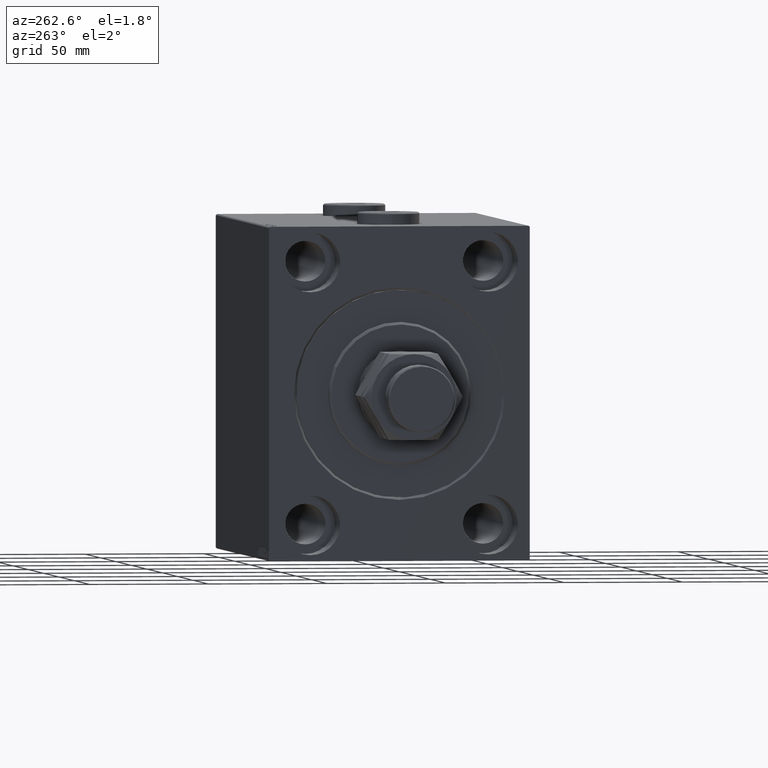
[diagram: clean part render]
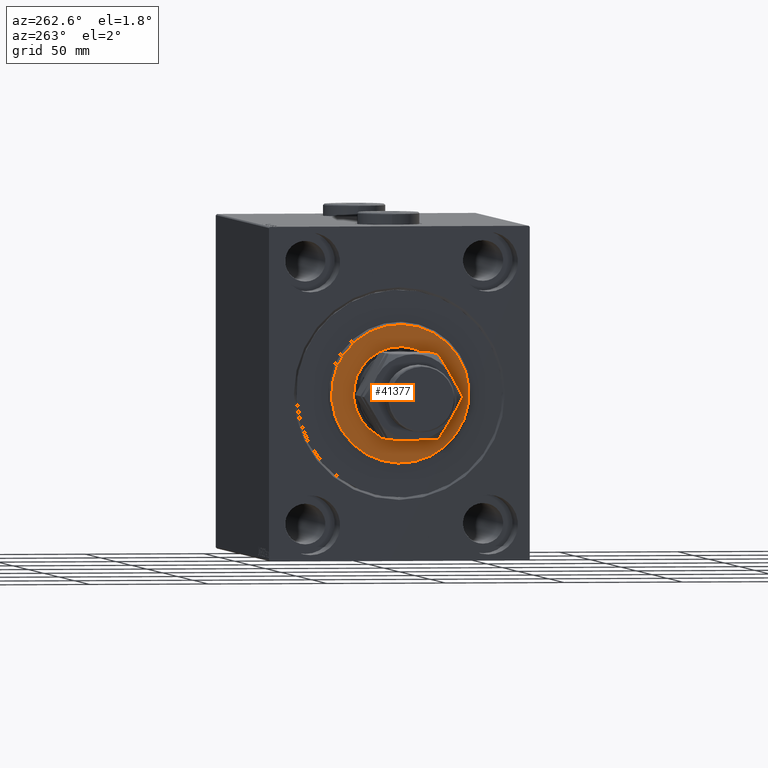
[diagram: same view with one face highlighted and labeled with its STEP entity id]
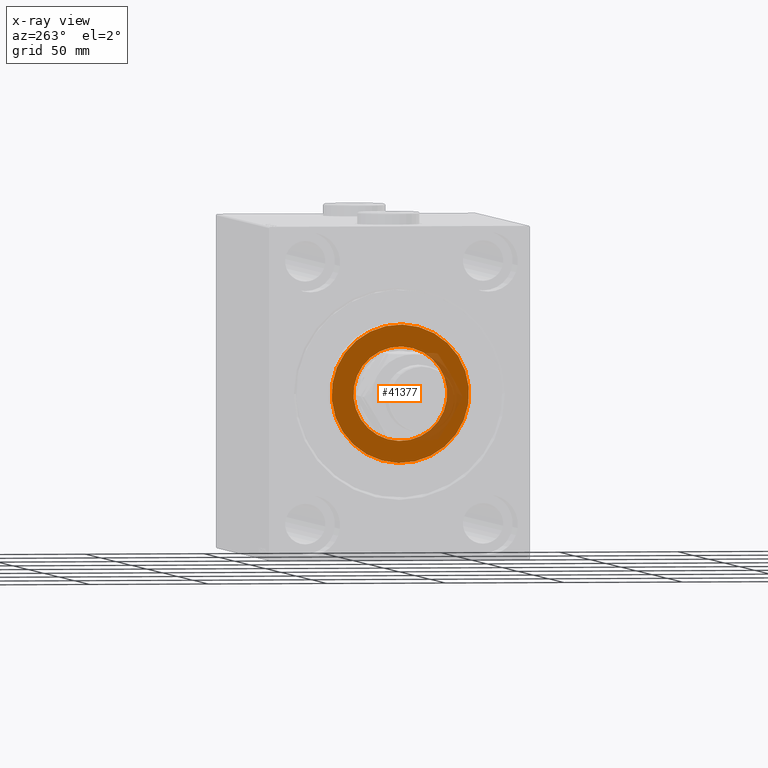
[diagram: x-ray of the same camera — body ghosted, the highlighted face saturated]
A machine part, auxiliary view. The second image highlights one B-rep face of the part: STEP entity #41377.
The next image is the same camera in x-ray: the body ghosted, the highlighted face saturated — about 13% of this face is hidden behind the body in this view.
In plain terms, the highlighted planar face has unit normal (-1, 0, 0).
Its self-contained STEP definition (entity closure, byte-faithful):
#2478 = AXIS2_PLACEMENT_3D ( 'NONE', #5782, #31244, #27421 ) ;
#4184 = AXIS2_PLACEMENT_3D ( 'NONE', #37501, #30604, #16333 ) ;
#5782 = CARTESIAN_POINT ( 'NONE',  ( 3.000000000000000000, 0.000000000000000000, 0.000000000000000000 ) ) ;
#8401 = ORIENTED_EDGE ( 'NONE', *, *, #41915, .T. ) ;
#10887 = AXIS2_PLACEMENT_3D ( 'NONE', #19727, #19026, #16155 ) ;
#11198 = EDGE_LOOP ( 'NONE', ( #29386, #8401 ) ) ;
#11242 = VERTEX_POINT ( 'NONE', #26295 ) ;
#13956 = DIRECTION ( 'NONE',  ( 0.000000000000000000, 0.000000000000000000, -1.000000000000000000 ) ) ;
#15405 = DIRECTION ( 'NONE',  ( 1.000000000000000000, -0.000000000000000000, 0.000000000000000000 ) ) ;
#16155 = DIRECTION ( 'NONE',  ( 0.000000000000000000, 0.000000000000000000, -1.000000000000000000 ) ) ;
#16333 = DIRECTION ( 'NONE',  ( 0.000000000000000000, 0.000000000000000000, -1.000000000000000000 ) ) ;
#16544 = CARTESIAN_POINT ( 'NONE',  ( 3.000000000000000000, 0.000000000000000000, 19.75000000000000000 ) ) ;
#17526 = DIRECTION ( 'NONE',  ( 1.000000000000000000, -0.000000000000000000, 0.000000000000000000 ) ) ;
#18209 = CARTESIAN_POINT ( 'NONE',  ( 3.000000000000000000, 0.000000000000000000, 0.000000000000000000 ) ) ;
#18752 = ORIENTED_EDGE ( 'NONE', *, *, #33242, .T. ) ;
#19026 = DIRECTION ( 'NONE',  ( 1.000000000000000000, -0.000000000000000000, 0.000000000000000000 ) ) ;
#19727 = CARTESIAN_POINT ( 'NONE',  ( 3.000000000000000000, 0.000000000000000000, 0.000000000000000000 ) ) ;
#21469 = VERTEX_POINT ( 'NONE', #22587 ) ;
#21481 = CIRCLE ( 'NONE', #2478, 19.75000000000000000 ) ;
#22304 = CARTESIAN_POINT ( 'NONE',  ( 3.000000000000000000, 0.000000000000000000, 0.000000000000000000 ) ) ;
#22587 = CARTESIAN_POINT ( 'NONE',  ( 3.000000000000000000, 3.612708057484691604E-15, -28.99999999999999289 ) ) ;
#23035 = AXIS2_PLACEMENT_3D ( 'NONE', #22304, #15405, #33478 ) ;
#24717 = CIRCLE ( 'NONE', #4184, 19.75000000000000000 ) ;
#26295 = CARTESIAN_POINT ( 'NONE',  ( 3.000000000000000000, 0.000000000000000000, 28.99999999999999289 ) ) ;
#27421 = DIRECTION ( 'NONE',  ( 0.000000000000000000, 0.000000000000000000, -1.000000000000000000 ) ) ;
#29386 = ORIENTED_EDGE ( 'NONE', *, *, #41169, .T. ) ;
#30329 = VERTEX_POINT ( 'NONE', #46584 ) ;
#30604 = DIRECTION ( 'NONE',  ( -1.000000000000000000, 0.000000000000000000, -0.000000000000000000 ) ) ;
#31244 = DIRECTION ( 'NONE',  ( -1.000000000000000000, 0.000000000000000000, -0.000000000000000000 ) ) ;
#32260 = FACE_BOUND ( 'NONE', #36064, .T. ) ;
#33242 = EDGE_CURVE ( 'NONE', #30329, #35480, #21481, .T. ) ;
#33478 = DIRECTION ( 'NONE',  ( 0.000000000000000000, 0.000000000000000000, -1.000000000000000000 ) ) ;
#35480 = VERTEX_POINT ( 'NONE', #16544 ) ;
#35826 = PLANE ( 'NONE',  #46574 ) ;
#36064 = EDGE_LOOP ( 'NONE', ( #39855, #18752 ) ) ;
#37501 = CARTESIAN_POINT ( 'NONE',  ( 3.000000000000000000, 0.000000000000000000, 0.000000000000000000 ) ) ;
#39855 = ORIENTED_EDGE ( 'NONE', *, *, #46483, .T. ) ;
#40494 = CIRCLE ( 'NONE', #10887, 28.99999999999999289 ) ;
#41169 = EDGE_CURVE ( 'NONE', #11242, #21469, #43543, .T. ) ;
#41377 = ADVANCED_FACE ( 'NONE', ( #42726, #32260 ), #35826, .T. ) ;
#41915 = EDGE_CURVE ( 'NONE', #21469, #11242, #40494, .T. ) ;
#42726 = FACE_OUTER_BOUND ( 'NONE', #11198, .T. ) ;
#43543 = CIRCLE ( 'NONE', #23035, 28.99999999999999289 ) ;
#46483 = EDGE_CURVE ( 'NONE', #35480, #30329, #24717, .T. ) ;
#46574 = AXIS2_PLACEMENT_3D ( 'NONE', #18209, #17526, #13956 ) ;
#46584 = CARTESIAN_POINT ( 'NONE',  ( 3.000000000000000000, 2.418677428316022331E-15, -19.75000000000000000 ) ) ;